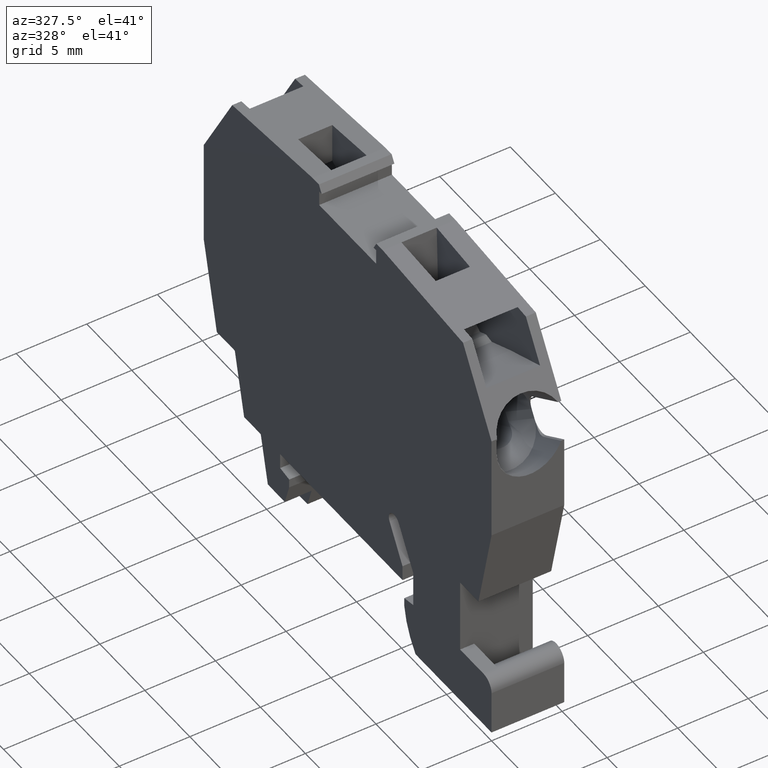
[diagram: clean part render]
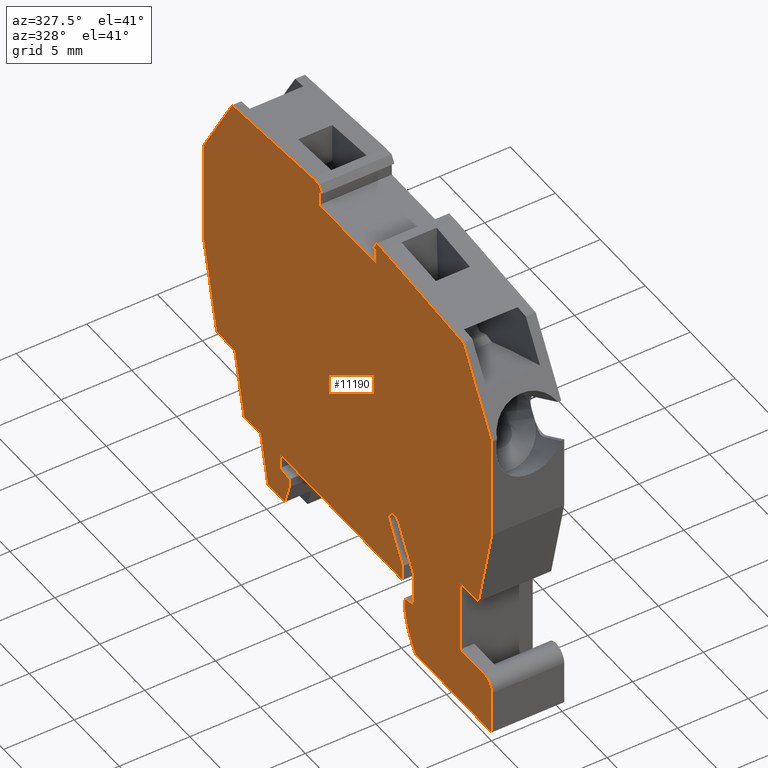
[diagram: same view with one face highlighted and labeled with its STEP entity id]
A machine part, auxiliary view. The second image highlights one B-rep face of the part: STEP entity #11190.
In plain terms, the highlighted planar face has unit normal (1, 0, 0).
Its self-contained STEP definition (entity closure, byte-faithful):
#3730=CARTESIAN_POINT('',(84.9052722821174,118.759658534384,10.930006));
#3740=CARTESIAN_POINT('',(84.9052722821174,118.759658534384,6.810002));
#3750=CARTESIAN_POINT('',(84.9052722821174,118.759658534384,
2.68999799999999));
#3760=CARTESIAN_POINT('',(84.9052722821174,118.759658534384,
-1.43000600000001));
#3770=CARTESIAN_POINT('',(84.3856570398464,118.759658534384,10.930006));
#3780=CARTESIAN_POINT('',(84.3856570398464,118.759658534384,
6.81000199999999));
#3790=CARTESIAN_POINT('',(84.3856570398464,118.759658534384,
2.68999799999999));
#3800=CARTESIAN_POINT('',(84.3856570398464,118.759658534384,
-1.43000600000001));
#3810=CARTESIAN_POINT('',(84.125849418711,119.209658534384,10.930006));
#3820=CARTESIAN_POINT('',(84.1258494187111,119.209658534384,6.810002));
#3830=CARTESIAN_POINT('',(84.1258494187111,119.209658534384,
2.68999799999999));
#3840=CARTESIAN_POINT('',(84.1258494187111,119.209658534384,
-1.43000600000001));
#3850=CARTESIAN_POINT('',(84.3856570398469,119.659658534384,10.930006));
#3860=CARTESIAN_POINT('',(84.3856570398469,119.659658534384,6.810002));
#3870=CARTESIAN_POINT('',(84.385657039847,119.659658534384,2.689998));
#3880=CARTESIAN_POINT('',(84.385657039847,119.659658534384,-1.430006));
#3890=(BOUNDED_SURFACE() B_SPLINE_SURFACE(3,3,((#3730,#3770,#3810,#3850)
,(#3740,#3780,#3820,#3860),(#3750,#3790,#3830,#3870),(#3760,#3800,#3840,
#3880)),.UNSPECIFIED.,.F.,.F.,.F.) B_SPLINE_SURFACE_WITH_KNOTS((4,4),(4,
4),(-11.030006,1.330006),(0.,2.0943951023941),.UNSPECIFIED.) 
GEOMETRIC_REPRESENTATION_ITEM() RATIONAL_B_SPLINE_SURFACE(((1.,
0.666666666666405,0.666666666666405,1.),(1.,0.666666666666405,
0.666666666666405,1.),(1.,0.666666666666405,0.666666666666405,1.),(1.,
0.666666666666405,0.666666666666405,1.))) REPRESENTATION_ITEM('') 
SURFACE());
#4980=CARTESIAN_POINT('',(84.9052722821174,119.959658534384,-1.430006));
#4990=CARTESIAN_POINT('',(84.9052722821173,119.959658534384,2.689998));
#5000=CARTESIAN_POINT('',(84.9052722821173,119.959658534384,6.810002));
#5010=CARTESIAN_POINT('',(84.9052722821173,119.959658534384,10.930006));
#5020=CARTESIAN_POINT('',(84.6856570398469,119.959658534384,-1.430006));
#5030=CARTESIAN_POINT('',(84.6856570398469,119.959658534384,2.689998));
#5040=CARTESIAN_POINT('',(84.6856570398469,119.959658534384,6.810002));
#5050=CARTESIAN_POINT('',(84.6856570398468,119.959658534384,10.930006));
#5060=CARTESIAN_POINT('',(84.4954646609824,119.849850913249,
-1.43000600000001));
#5070=CARTESIAN_POINT('',(84.4954646609824,119.849850913249,2.689998));
#5080=CARTESIAN_POINT('',(84.4954646609823,119.849850913249,6.810002));
#5090=CARTESIAN_POINT('',(84.4954646609823,119.849850913248,10.930006));
#5100=CARTESIAN_POINT('',(84.385657039847,119.659658534384,
-1.43000600000001));
#5110=CARTESIAN_POINT('',(84.385657039847,119.659658534384,
2.68999799999999));
#5120=CARTESIAN_POINT('',(84.3856570398469,119.659658534384,6.810002));
#5130=CARTESIAN_POINT('',(84.3856570398469,119.659658534384,10.930006));
#5140=(BOUNDED_SURFACE() B_SPLINE_SURFACE(3,3,((#4980,#5020,#5060,#5100)
,(#4990,#5030,#5070,#5110),(#5000,#5040,#5080,#5120),(#5010,#5050,#5090,
#5130)),.UNSPECIFIED.,.F.,.F.,.F.) B_SPLINE_SURFACE_WITH_KNOTS((4,4),(4,
4),(-1.33000600000001,11.030006),(0.,1.0471975511957),.UNSPECIFIED.) 
GEOMETRIC_REPRESENTATION_ITEM() RATIONAL_B_SPLINE_SURFACE(((1.,
0.91068360252311,0.91068360252311,1.),(1.,0.91068360252311,
0.91068360252311,1.),(1.,0.91068360252311,0.91068360252311,1.),(1.,
0.91068360252311,0.91068360252311,1.))) REPRESENTATION_ITEM('') SURFACE(
));
#6270=CARTESIAN_POINT('',(73.7989586126691,130.334733248301,9.9));
#6280=DIRECTION('',(2.75007415921002E-49,1.0263416486754E-48,-1.));
#6290=DIRECTION('',(-0.50000000000023,-0.866025403784306,
-1.02634164867533E-48));
#6300=AXIS2_PLACEMENT_3D('',#6270,#6280,#6290);
#6310=PLANE('',#6300);
#6320=CARTESIAN_POINT('',(94.0067872298852,117.723944849772,9.9));
#6330=DIRECTION('',(0.499999999999961,0.866025403784461,
1.02634164867532E-48));
#6340=VECTOR('',#6330,1.);
#6350=LINE('',#6320,#6340);
#6360=CARTESIAN_POINT('',(93.6243744555108,117.061586495092,9.9));
#6370=VERTEX_POINT('',#6360);
#6380=CARTESIAN_POINT('',(97.8515735103915,124.383310031853,9.9));
#6390=VERTEX_POINT('',#6380);
#6400=EDGE_CURVE('',#6370,#6390,#6350,.T.);
#6410=ORIENTED_EDGE('',*,*,#6400,.T.);
#6420=CARTESIAN_POINT('',(92.7381946940344,122.995782770102,9.9));
#6430=DIRECTION('',(4.82893121391161E-15,8.36395420874503E-15,-1.));
#6440=DIRECTION('',(-0.499999999999958,-0.866025403784463,
-9.65786242781878E-15));
#6450=AXIS2_PLACEMENT_3D('',#6420,#6430,#6440);
#6460=CIRCLE('',#6450,6.);
#6470=CARTESIAN_POINT('',(90.4900998394155,117.432863615141,9.9));
#6480=VERTEX_POINT('',#6470);
#6490=EDGE_CURVE('',#6370,#6480,#6460,.T.);
#6500=ORIENTED_EDGE('',*,*,#6490,.F.);
#6510=CARTESIAN_POINT('',(79.6226566744922,123.707184851812,9.9));
#6520=DIRECTION('',(0.866025403784463,-0.499999999999958,
1.77767588142985E-48));
#6530=VECTOR('',#6520,1.);
#6540=LINE('',#6510,#6530);
#6550=CARTESIAN_POINT('',(89.9499831610541,117.744700124787,9.9));
#6560=VERTEX_POINT('',#6550);
#6570=EDGE_CURVE('',#6560,#6480,#6540,.T.);
#6580=ORIENTED_EDGE('',*,*,#6570,.T.);
#6590=CARTESIAN_POINT('',(89.9424288587446,117.723944849772,9.9));
#6600=DIRECTION('',(-0.342020143325517,-0.939692620785963,
-7.02059035561818E-49));
#6610=VECTOR('',#6600,1.);
#6620=LINE('',#6590,#6610);
#6630=CARTESIAN_POINT('',(90.2972795163878,118.698889018925,9.9));
#6640=VERTEX_POINT('',#6630);
#6650=EDGE_CURVE('',#6640,#6560,#6620,.T.);
#6660=ORIENTED_EDGE('',*,*,#6650,.T.);
#6670=CARTESIAN_POINT('',(79.6226566744922,124.861885390191,9.9));
#6680=DIRECTION('',(0.866025403784463,-0.499999999999958,
1.77767588142985E-48));
#6690=VECTOR('',#6680,1.);
#6700=LINE('',#6670,#6690);
#6710=CARTESIAN_POINT('',(88.1135626589794,119.959658534384,9.9));
#6720=VERTEX_POINT('',#6710);
#6730=EDGE_CURVE('',#6720,#6640,#6700,.T.);
#6740=ORIENTED_EDGE('',*,*,#6730,.T.);
#6750=CARTESIAN_POINT('',(79.6226566744922,119.959658534383,9.9));
#6760=DIRECTION('',(1.,4.90718576884321E-14,2.05268329735081E-48));
#6770=VECTOR('',#6760,1.);
#6780=LINE('',#6750,#6770);
#6790=CARTESIAN_POINT('',(84.9052722821173,119.959658534384,9.9));
#6800=VERTEX_POINT('',#6790);
#6810=EDGE_CURVE('',#6800,#6720,#6780,.T.);
#6820=ORIENTED_EDGE('',*,*,#6810,.T.);
#6830=CARTESIAN_POINT('',(65.1312694919156,122.036639857056,9.9));
#6840=DIRECTION('',(2.75007415921001E-49,1.0263416486754E-48,-1.));
#6850=DIRECTION('',(-0.50000000000023,-0.866025403784306,
-1.02634164867533E-48));
#6860=AXIS2_PLACEMENT_3D('',#6830,#6840,#6850);
#6870=PLANE('',#6860);
#6880=CARTESIAN_POINT('',(84.9052722821173,119.959658534384,9.9));
#6890=CARTESIAN_POINT('',(84.8922553895517,119.959658534384,9.9));
#6900=CARTESIAN_POINT('',(84.879211767035,119.959234507938,9.9));
#6910=CARTESIAN_POINT('',(84.8661820005516,119.958383805177,9.9));
#6920=CARTESIAN_POINT('',(84.8531522794495,119.95753310538,9.9));
#6930=CARTESIAN_POINT('',(84.8401369356626,119.956255740973,9.9));
#6940=CARTESIAN_POINT('',(84.8271775356204,119.954554500557,9.9));
#6950=CARTESIAN_POINT('',(84.8142181337673,119.952853259903,9.9));
#6960=CARTESIAN_POINT('',(84.8013152005139,119.950728213042,9.9));
#6970=CARTESIAN_POINT('',(84.7885095327525,119.948187599393,9.9));
#6980=CARTESIAN_POINT('',(84.7757033120261,119.945646876037,9.9));
#6990=CARTESIAN_POINT('',(84.7629970334966,119.942691248885,9.9));
#7000=CARTESIAN_POINT('',(84.750422857509,119.939332283745,9.9));
#7010=CARTESIAN_POINT('',(84.7378409498754,119.935971253235,9.9));
#7020=CARTESIAN_POINT('',(84.7253301208178,119.932189927124,9.9));
#7030=CARTESIAN_POINT('',(84.7129299019039,119.927993302609,9.9));
#7040=CARTESIAN_POINT('',(84.7005297719434,119.923796708199,9.9));
#7050=CARTESIAN_POINT('',(84.6882407546436,119.919184936903,9.9));
#7060=CARTESIAN_POINT('',(84.6761033322517,119.914168761898,9.9));
#7070=CARTESIAN_POINT('',(84.6639659507758,119.909152603802,9.9));
#7080=CARTESIAN_POINT('',(84.6519806734497,119.903732229074,9.9));
#7090=CARTESIAN_POINT('',(84.6401870375704,119.897924094422,9.9));
#7100=CARTESIAN_POINT('',(84.6283933992491,119.892115958568,9.9));
#7110=CARTESIAN_POINT('',(84.6167918953126,119.885920307031,9.9));
#7120=CARTESIAN_POINT('',(84.6054194521357,119.87935871752,9.9));
#7130=CARTESIAN_POINT('',(84.5940469657505,119.872797103079,9.9));
#7140=CARTESIAN_POINT('',(84.5829039956317,119.865869841598,9.9));
#7150=CARTESIAN_POINT('',(84.5720234143097,119.858602611515,9.9));
#7160=CARTESIAN_POINT('',(84.5611426211523,119.851335239947,9.9));
#7170=CARTESIAN_POINT('',(84.5505251554321,119.843728623734,9.9));
#7180=CARTESIAN_POINT('',(84.5401970942795,119.835809883458,9.9));
#7190=CARTESIAN_POINT('',(84.5298646176953,119.827887757778,9.9));
#7200=CARTESIAN_POINT('',(84.5197583401296,119.819604531619,9.9));
#7210=CARTESIAN_POINT('',(84.5099128261391,119.810979817472,9.9));
#7220=CARTESIAN_POINT('',(84.5000673843084,119.802355166537,9.9));
#7230=CARTESIAN_POINT('',(84.490483123248,119.793389330617,9.9));
#7240=CARTESIAN_POINT('',(84.4811933338156,119.784107642767,9.9));
#7250=CARTESIAN_POINT('',(84.471903577023,119.774825987528,9.9));
#7260=CARTESIAN_POINT('',(84.462908690772,119.765228847087,9.9));
#7270=CARTESIAN_POINT('',(84.4542389629133,119.755346473255,9.9));
#7280=CARTESIAN_POINT('',(84.445569234456,119.74546409874,9.9));
#7290=CARTESIAN_POINT('',(84.4372250268748,119.735296904691,9.9));
#7300=CARTESIAN_POINT('',(84.4292322895197,119.724878913672,9.9));
#7310=CARTESIAN_POINT('',(84.4212395229412,119.714460884563,9.9));
#7320=CARTESIAN_POINT('',(84.4135985371096,119.70379250173,9.9));
#7330=CARTESIAN_POINT('',(84.4063299896477,119.692910074193,9.9));
#7340=CARTESIAN_POINT('',(84.3990613877759,119.682027565194,9.9));
#7350=CARTESIAN_POINT('',(84.3921654687247,119.670931463878,9.9));
#7360=CARTESIAN_POINT('',(84.3856570398469,119.659658534384,9.9));
#7370=B_SPLINE_CURVE_WITH_KNOTS('',3,(#6880,#6890,#6900,#6910,#6920,
#6930,#6940,#6950,#6960,#6970,#6980,#6990,#7000,#7010,#7020,#7030,#7040,
#7050,#7060,#7070,#7080,#7090,#7100,#7110,#7120,#7130,#7140,#7150,#7160,
#7170,#7180,#7190,#7200,#7210,#7220,#7230,#7240,#7250,#7260,#7270,#7280,
#7290,#7300,#7310,#7320,#7330,#7340,#7350,#7360),.UNSPECIFIED.,.F.,.F.,(
4,3,3,3,3,3,3,3,3,3,3,3,3,3,3,3,4),(0.,0.0391179881814192,
0.0783169462175899,0.117512585565329,0.156622084769641,0.195799111763416
,0.235142074090235,0.27456831765098,0.313989341949201,0.353317003248559,
0.392470125734913,0.431639167849597,0.470977155326416,0.510401793913125,
0.54982469268618,0.589157579635011,0.628318530717425),.UNSPECIFIED.);
#7380=SURFACE_CURVE('',#7370,(#6870,#5140),.CURVE_3D.);
#7390=CARTESIAN_POINT('',(84.3856570398469,119.659658534384,9.9));
#7400=VERTEX_POINT('',#7390);
#7410=EDGE_CURVE('',#6800,#7400,#7380,.T.);
#7420=ORIENTED_EDGE('',*,*,#7410,.F.);
#7430=CARTESIAN_POINT('',(84.3856570398469,119.659658534384,9.9));
#7440=CARTESIAN_POINT('',(84.3791524664466,119.648392282773,9.9));
#7450=CARTESIAN_POINT('',(84.3730086181134,119.636903756255,9.9));
#7460=CARTESIAN_POINT('',(84.3672457372375,119.625228557174,9.9));
#7470=CARTESIAN_POINT('',(84.3614815168322,119.613550644298,9.9));
#7480=CARTESIAN_POINT('',(84.3561037457526,119.601698565305,9.9));
#7490=CARTESIAN_POINT('',(84.3511132970889,119.58967553226,9.9));
#7500=CARTESIAN_POINT('',(84.3461197065178,119.577644929705,9.9));
#7510=CARTESIAN_POINT('',(84.3415035751625,119.565416174713,9.9));
#7520=CARTESIAN_POINT('',(84.3372848182968,119.553024097366,9.9));
#7530=CARTESIAN_POINT('',(84.3330660894045,119.540632102188,9.9));
#7540=CARTESIAN_POINT('',(84.3292449421917,119.528077261568,9.9));
#7550=CARTESIAN_POINT('',(84.325837157934,119.515398499972,9.9));
#7560=CARTESIAN_POINT('',(84.3224293834914,119.502719774893,9.9));
#7570=CARTESIAN_POINT('',(84.3194351306438,119.489917648079,9.9));
#7580=CARTESIAN_POINT('',(84.3168650257207,119.477033577052,9.9));
#7590=CARTESIAN_POINT('',(84.3142949190566,119.464149497298,9.9));
#7600=CARTESIAN_POINT('',(84.3121490633138,119.451184011792,9.9));
#7610=CARTESIAN_POINT('',(84.3104324154984,119.438179443002,9.9));
#7620=CARTESIAN_POINT('',(84.3087157603336,119.425174818536,9.9));
#7630=CARTESIAN_POINT('',(84.3074283560309,119.412131645361,9.9));
#7640=CARTESIAN_POINT('',(84.3065694726115,119.399091336599,9.9));
#7650=CARTESIAN_POINT('',(84.3057103881583,119.386047975569,9.9));
#7660=CARTESIAN_POINT('',(84.3052800457298,119.373020821215,9.9));
#7670=CARTESIAN_POINT('',(84.3052723861203,119.360011809878,9.9));
#7680=CARTESIAN_POINT('',(84.3052647185534,119.346989283685,9.9));
#7690=CARTESIAN_POINT('',(84.3056813975167,119.333927736017,9.9));
#7700=CARTESIAN_POINT('',(84.3065275911639,119.320866846419,9.9));
#7710=CARTESIAN_POINT('',(84.3073737790585,119.307806045614,9.9));
#7720=CARTESIAN_POINT('',(84.3086494916608,119.29474642137,9.9));
#7730=CARTESIAN_POINT('',(84.3103545308169,119.281729918409,9.9));
#7740=CARTESIAN_POINT('',(84.3120595647991,119.268713454946,9.9));
#7750=CARTESIAN_POINT('',(84.3141938742045,119.25574065267,9.9));
#7760=CARTESIAN_POINT('',(84.3167515318803,119.242853883189,9.9));
#7770=CARTESIAN_POINT('',(84.3193091909035,119.22996710692,9.9));
#7780=CARTESIAN_POINT('',(84.3222900881434,119.217166900627,9.9));
#7790=CARTESIAN_POINT('',(84.3256827144375,119.204494321252,9.9));
#7800=CARTESIAN_POINT('',(84.3290753547227,119.191821689615,9.9));
#7810=CARTESIAN_POINT('',(84.3328795598113,119.179277196334,9.9));
#7820=CARTESIAN_POINT('',(84.3370788845011,119.166898935646,9.9));
#7830=CARTESIAN_POINT('',(84.3412787762865,119.154519003343,9.9));
#7840=CARTESIAN_POINT('',(84.3458709373764,119.142312488445,9.9));
#7850=CARTESIAN_POINT('',(84.3508429770934,119.130293877711,9.9));
#7860=CARTESIAN_POINT('',(84.3558198931878,119.118263479604,9.9));
#7870=CARTESIAN_POINT('',(84.3612037417691,119.10635897569,9.9));
#7880=CARTESIAN_POINT('',(84.3669842494651,119.094618926205,9.9));
#7890=CARTESIAN_POINT('',(84.3727647168925,119.082878958505,9.9));
#7900=CARTESIAN_POINT('',(84.3789416558523,119.071303927177,9.9));
#7910=CARTESIAN_POINT('',(84.385498962412,119.059932499274,9.9));
#7920=CARTESIAN_POINT('',(84.3920562480622,119.048561107632,9.9));
#7930=CARTESIAN_POINT('',(84.3989936485972,119.03739379853,9.9));
#7940=CARTESIAN_POINT('',(84.4062895841859,119.026467497342,9.9));
#7950=CARTESIAN_POINT('',(84.4135855225198,119.015541192042,9.9));
#7960=CARTESIAN_POINT('',(84.4212396893526,119.004856349411,9.9));
#7970=CARTESIAN_POINT('',(84.4292258177046,118.994446590822,9.9));
#7980=CARTESIAN_POINT('',(84.4372119777365,118.984036790939,9.9));
#7990=CARTESIAN_POINT('',(84.4455297520304,118.973902486016,9.9));
#8000=CARTESIAN_POINT('',(84.4541493993924,118.964072709711,9.9));
#8010=CARTESIAN_POINT('',(84.4627696008118,118.954242301563,9.9));
#8020=CARTESIAN_POINT('',(84.4716890756778,118.94471908158,9.9));
#8030=CARTESIAN_POINT('',(84.4808827235826,118.935519992623,9.9));
#8040=CARTESIAN_POINT('',(84.4900836175769,118.926313653289,9.9));
#8050=CARTESIAN_POINT('',(84.4996124128275,118.917378925541,9.9));
#8060=CARTESIAN_POINT('',(84.5094450183332,118.908747481907,9.9));
#8070=CARTESIAN_POINT('',(84.5192775536821,118.90011609986,9.9));
#8080=CARTESIAN_POINT('',(84.5294135433908,118.891788375132,9.9));
#8090=CARTESIAN_POINT('',(84.5398234376941,118.88379390856,9.9));
#8100=CARTESIAN_POINT('',(84.5502332971908,118.875799468719,9.9));
#8110=CARTESIAN_POINT('',(84.5609166455768,118.868138633272,9.9));
#8120=CARTESIAN_POINT('',(84.5718395010633,118.860837343455,9.9));
#8130=CARTESIAN_POINT('',(84.5827623590156,118.853536051989,9.9));
#8140=CARTESIAN_POINT('',(84.5939242672656,118.846594609761,9.9));
#8150=CARTESIAN_POINT('',(84.6052881298481,118.840034142743,9.9));
#8160=CARTESIAN_POINT('',(84.6166520357312,118.833473650727,9.9));
#8170=CARTESIAN_POINT('',(84.628217417607,118.827294381903,9.9));
#8180=CARTESIAN_POINT('',(84.6399456670681,118.821511911848,9.9));
#8190=CARTESIAN_POINT('',(84.6516741717263,118.815729315971,9.9));
#8200=CARTESIAN_POINT('',(84.6635643302958,118.810344020553,9.9));
#8210=CARTESIAN_POINT('',(84.6755800325725,118.805364866281,9.9));
#8220=CARTESIAN_POINT('',(84.687601276166,118.800383415757,9.9));
#8230=CARTESIAN_POINT('',(84.699821788966,118.795778037722,9.9));
#8240=CARTESIAN_POINT('',(84.7122073481452,118.791568813235,9.9));
#8250=CARTESIAN_POINT('',(84.7245928168495,118.787359619495,9.9));
#8260=CARTESIAN_POINT('',(84.73714286215,118.783546788325,9.9));
#8270=CARTESIAN_POINT('',(84.7498189586374,118.780146442833,9.9));
#8280=CARTESIAN_POINT('',(84.7624950107736,118.776746109239,9.9));
#8290=CARTESIAN_POINT('',(84.7752965985121,118.773758422824,9.9));
#8300=CARTESIAN_POINT('',(84.7881824485436,118.771194456573,9.9));
#8310=CARTESIAN_POINT('',(84.8010682995447,118.768630490129,9.9));
#8320=CARTESIAN_POINT('',(84.8140378747162,118.766490350422,9.9));
#8330=CARTESIAN_POINT('',(84.8270488102091,118.764779480723,9.9));
#8340=CARTESIAN_POINT('',(84.8400597932463,118.763068604773,9.9));
#8350=CARTESIAN_POINT('',(84.8531115990598,118.761787045916,9.9));
#8360=CARTESIAN_POINT('',(84.8661625300093,118.760934535118,9.9));
#8370=CARTESIAN_POINT('',(84.8792135585181,118.760082017947,9.9));
#8380=CARTESIAN_POINT('',(84.8922631997174,118.759658534384,9.9));
#8390=CARTESIAN_POINT('',(84.9052722821174,118.759658534384,9.9));
#8400=B_SPLINE_CURVE_WITH_KNOTS('',3,(#7430,#7440,#7450,#7460,#7470,
#7480,#7490,#7500,#7510,#7520,#7530,#7540,#7550,#7560,#7570,#7580,#7590,
#7600,#7610,#7620,#7630,#7640,#7650,#7660,#7670,#7680,#7690,#7700,#7710,
#7720,#7730,#7740,#7750,#7760,#7770,#7780,#7790,#7800,#7810,#7820,#7830,
#7840,#7850,#7860,#7870,#7880,#7890,#7900,#7910,#7920,#7930,#7940,#7950,
#7960,#7970,#7980,#7990,#8000,#8010,#8020,#8030,#8040,#8050,#8060,#8070,
#8080,#8090,#8100,#8110,#8120,#8130,#8140,#8150,#8160,#8170,#8180,#8190,
#8200,#8210,#8220,#8230,#8240,#8250,#8260,#8270,#8280,#8290,#8300,#8310,
#8320,#8330,#8340,#8350,#8360,#8370,#8380,#8390),.UNSPECIFIED.,.F.,.F.,(
4,3,3,3,3,3,3,3,3,3,3,3,3,3,3,3,3,3,3,3,3,3,3,3,3,3,3,3,3,3,3,3,4),(0.,
0.03905044959491,0.0780992822992287,0.117279633515831,0.156615223227715,
0.196022387826658,0.235412480429098,0.274698020850868,0.313805989847709,
0.352978029074242,0.392308658775449,0.431714569761626,0.471107200362552,
0.510398896086448,0.549513116704426,0.588676713607366,0.628002231434766,
0.667406727517966,0.706801736449671,0.746099440673842,0.785220667735143,
0.824375693193494,0.863695947936633,0.903098867997635,0.942496095303167,
0.981799660436926,1.02092864773696,1.06007497386912,1.09938981498791,
1.13879099811314,1.17819028354703,1.21749956124592,1.25663706144443),
.UNSPECIFIED.);
#8410=SURFACE_CURVE('',#8400,(#6870,#3890),.CURVE_3D.);
#8420=CARTESIAN_POINT('',(84.9052722821174,118.759658534384,9.9));
#8430=VERTEX_POINT('',#8420);
#8440=EDGE_CURVE('',#7400,#8430,#8410,.T.);
#8450=ORIENTED_EDGE('',*,*,#8440,.F.);
#8460=CARTESIAN_POINT('',(79.6226566744922,118.759658534383,9.9));
#8470=DIRECTION('',(-1.,-4.94604357470507E-14,-2.05268329735081E-48));
#8480=VECTOR('',#8470,1.);
#8490=LINE('',#8460,#8480);
#8500=CARTESIAN_POINT('',(87.7920236280621,118.759658534384,9.9));
#8510=VERTEX_POINT('',#8500);
#8520=EDGE_CURVE('',#8510,#8430,#8490,.T.);
#8530=ORIENTED_EDGE('',*,*,#8520,.T.);
#8540=CARTESIAN_POINT('',(79.6226566744922,123.476244744136,9.9));
#8550=DIRECTION('',(-0.866025403784463,0.499999999999958,
-1.77767588142985E-48));
#8560=VECTOR('',#8550,1.);
#8570=LINE('',#8540,#8560);
#8580=CARTESIAN_POINT('',(88.744651572225,118.209658534384,9.9));
#8590=VERTEX_POINT('',#8580);
#8600=EDGE_CURVE('',#8590,#8510,#8570,.T.);
#8610=ORIENTED_EDGE('',*,*,#8600,.T.);
#8620=CARTESIAN_POINT('',(88.4642246456651,117.723944849772,9.9));
#8630=DIRECTION('',(0.499999999999958,0.866025403784463,
1.02634164867532E-48));
#8640=VECTOR('',#8630,1.);
#8650=LINE('',#8620,#8640);
#8660=CARTESIAN_POINT('',(81.9446515722256,106.431713042915,9.9));
#8670=VERTEX_POINT('',#8660);
#8680=EDGE_CURVE('',#8670,#8590,#8650,.T.);
#8690=ORIENTED_EDGE('',*,*,#8680,.T.);
#8700=CARTESIAN_POINT('',(82.8972795163885,105.881713042915,
9.90000000000007));
#8710=DIRECTION('',(-0.866025403784463,0.499999999999958,
-3.0379265288839E-27));
#8720=VECTOR('',#8710,1.);
#8730=LINE('',#8700,#8720);
#8740=CARTESIAN_POINT('',(82.8972795163885,105.881713042915,9.9));
#8750=VERTEX_POINT('',#8740);
#8760=EDGE_CURVE('',#8750,#8670,#8730,.T.);
#8770=ORIENTED_EDGE('',*,*,#8760,.T.);
#8780=CARTESIAN_POINT('',(83.5499831610546,106.659574956346,
9.90000000000008));
#8790=DIRECTION('',(-0.642787609686519,-0.766044443118995,
-9.51113779644172E-15));
#8800=VECTOR('',#8790,1.);
#8810=LINE('',#8780,#8800);
#8820=CARTESIAN_POINT('',(83.5499831610546,106.659574956346,9.9));
#8830=VERTEX_POINT('',#8820);
#8840=EDGE_CURVE('',#8830,#8750,#8810,.T.);
#8850=ORIENTED_EDGE('',*,*,#8840,.T.);
#8860=CARTESIAN_POINT('',(84.0900998394161,106.3477384467,
9.90000000000008));
#8870=DIRECTION('',(-0.866025403784458,0.499999999999968,
-2.92789559285896E-27));
#8880=VECTOR('',#8870,1.);
#8890=LINE('',#8860,#8880);
#8900=CARTESIAN_POINT('',(84.090099839416,106.3477384467,9.9));
#8910=VERTEX_POINT('',#8900);
#8920=EDGE_CURVE('',#8910,#8830,#8890,.T.);
#8930=ORIENTED_EDGE('',*,*,#8920,.T.);
#8940=CARTESIAN_POINT('',(73.8469175853231,117.723944849772,9.9));
#8950=DIRECTION('',(-0.669130606358861,0.743144825477392,
-1.37351321941905E-48));
#8960=VECTOR('',#8950,1.);
#8970=LINE('',#8940,#8960);
#8980=CARTESIAN_POINT('',(85.1454481729173,105.175655380009,
9.90000000000633));
#8990=VERTEX_POINT('',#8980);
#9000=EDGE_CURVE('',#8990,#8910,#8970,.T.);
#9010=ORIENTED_EDGE('',*,*,#9000,.T.);
#9020=CARTESIAN_POINT('',(92.3902064761551,117.723944849772,9.9));
#9030=DIRECTION('',(-0.500000000000047,-0.866025403784412,
-1.0263416486755E-48));
#9040=VECTOR('',#9030,1.);
#9050=LINE('',#9020,#9040);
#9060=CARTESIAN_POINT('',(84.20165417794,103.54095622883,9.9));
#9070=VERTEX_POINT('',#9060);
#9080=EDGE_CURVE('',#8990,#9070,#9050,.T.);
#9090=ORIENTED_EDGE('',*,*,#9080,.F.);
#9100=CARTESIAN_POINT('',(79.6226566744921,104.940896255957,9.9));
#9110=DIRECTION('',(-0.956304755963028,0.292371704722762,
-1.96299079974244E-48));
#9120=VECTOR('',#9110,1.);
#9130=LINE('',#9100,#9120);
#9140=CARTESIAN_POINT('',(80.8646918801595,104.561167986132,9.9));
#9150=VERTEX_POINT('',#9140);
#9160=EDGE_CURVE('',#9070,#9150,#9130,.T.);
#9170=ORIENTED_EDGE('',*,*,#9160,.F.);
#9180=CARTESIAN_POINT('',(88.4642246456657,117.723944849772,9.9));
#9190=DIRECTION('',(-0.500000000000053,-0.866025403784408,
-1.02634164867551E-48));
#9200=VECTOR('',#9190,1.);
#9210=LINE('',#9180,#9200);
#9220=CARTESIAN_POINT('',(79.9410181831449,102.961318213287,
9.90000000000768));
#9230=VERTEX_POINT('',#9220);
#9240=EDGE_CURVE('',#9150,#9230,#9210,.T.);
#9250=ORIENTED_EDGE('',*,*,#9240,.F.);
#9260=CARTESIAN_POINT('',(79.6226566744922,103.058651094278,9.9));
#9270=DIRECTION('',(0.956304755963056,-0.292371704722669,
1.9629907997425E-48));
#9280=VECTOR('',#9270,1.);
#9290=LINE('',#9260,#9280);
#9300=CARTESIAN_POINT('',(75.5244504360704,104.311598480309,9.9));
#9310=VERTEX_POINT('',#9300);
#9320=EDGE_CURVE('',#9310,#9230,#9290,.T.);
#9330=ORIENTED_EDGE('',*,*,#9320,.T.);
#9340=CARTESIAN_POINT('',(83.2680722229596,117.723944849772,9.9));
#9350=DIRECTION('',(-0.500000000000741,-0.866025403784011,
-1.02634164867692E-48));
#9360=VECTOR('',#9350,1.);
#9370=LINE('',#9340,#9360);
#9380=CARTESIAN_POINT('',(74.524772057222,102.580104736919,9.9));
#9390=VERTEX_POINT('',#9380);
#9400=EDGE_CURVE('',#9310,#9390,#9370,.T.);
#9410=ORIENTED_EDGE('',*,*,#9400,.F.);
#9420=CARTESIAN_POINT('',(79.4494515937163,101.074479106254,9.9));
#9430=DIRECTION('',(0.956304755962662,-0.29237170472396,
5.98579406710722E-19));
#9440=VECTOR('',#9430,1.);
#9450=LINE('',#9420,#9440);
#9460=CARTESIAN_POINT('',(68.3415772113182,104.470497110757,9.9));
#9470=VERTEX_POINT('',#9460);
#9480=EDGE_CURVE('',#9470,#9390,#9450,.T.);
#9490=ORIENTED_EDGE('',*,*,#9480,.T.);
#9500=CARTESIAN_POINT('',(79.6226566744922,97.957362845935,9.9));
#9510=DIRECTION('',(-0.86602540378414,0.500000000000517,
-1.77767588142919E-48));
#9520=VECTOR('',#9510,1.);
#9530=LINE('',#9500,#9520);
#9540=CARTESIAN_POINT('',(61.9035663599316,108.187484408856,9.9));
#9550=VERTEX_POINT('',#9540);
#9560=EDGE_CURVE('',#9470,#9550,#9530,.T.);
#9570=ORIENTED_EDGE('',*,*,#9560,.F.);
#9580=CARTESIAN_POINT('',(56.3976883572616,117.723944849772,9.9));
#9590=DIRECTION('',(-0.499999999999394,0.866025403784789,
-1.02634164867416E-48));
#9600=VECTOR('',#9590,1.);
#9610=LINE('',#9580,#9600);
#9620=CARTESIAN_POINT('',(58.7371231859943,113.671924865404,9.9));
#9630=VERTEX_POINT('',#9620);
#9640=EDGE_CURVE('',#9550,#9630,#9610,.T.);
#9650=ORIENTED_EDGE('',*,*,#9640,.F.);
#9660=CARTESIAN_POINT('',(60.6266111357071,117.723944849772,9.9));
#9670=DIRECTION('',(0.422618261741619,0.906307787036221,
8.67501447032452E-49));
#9680=VECTOR('',#9670,1.);
#9690=LINE('',#9660,#9680);
#9700=CARTESIAN_POINT('',(62.5270291795025,121.799404496541,9.9));
#9710=VERTEX_POINT('',#9700);
#9720=EDGE_CURVE('',#9630,#9710,#9690,.T.);
#9730=ORIENTED_EDGE('',*,*,#9720,.F.);
#9740=CARTESIAN_POINT('',(60.1740614553628,117.723944849772,9.9));
#9750=DIRECTION('',(-0.500000000000883,-0.866025403783929,
-1.02634164867721E-48));
#9760=VECTOR('',#9750,1.);
#9770=LINE('',#9740,#9760);
#9780=CARTESIAN_POINT('',(62.8789351687343,122.408923549377,9.9));
#9790=VERTEX_POINT('',#9780);
#9800=EDGE_CURVE('',#9790,#9710,#9770,.T.);
#9810=ORIENTED_EDGE('',*,*,#9800,.T.);
#9820=CARTESIAN_POINT('',(79.6226566744922,122.408923549246,9.9));
#9830=DIRECTION('',(-1.,7.84955433985601E-12,-2.05268329735081E-48));
#9840=VECTOR('',#9830,1.);
#9850=LINE('',#9820,#9840);
#9860=CARTESIAN_POINT('',(63.4909264540766,122.408923549372,9.9));
#9870=VERTEX_POINT('',#9860);
#9880=EDGE_CURVE('',#9870,#9790,#9850,.T.);
#9890=ORIENTED_EDGE('',*,*,#9880,.T.);
#9900=CARTESIAN_POINT('',(60.7860527407061,117.723944849772,9.9));
#9910=DIRECTION('',(0.500000000001153,0.866025403783773,
1.02634164867777E-48));
#9920=VECTOR('',#9910,1.);
#9930=LINE('',#9900,#9920);
#9940=CARTESIAN_POINT('',(63.35477264351,122.173098231828,9.9));
#9950=VERTEX_POINT('',#9940);
#9960=EDGE_CURVE('',#9950,#9870,#9930,.T.);
#9970=ORIENTED_EDGE('',*,*,#9960,.T.);
#9980=CARTESIAN_POINT('',(79.6226566744922,112.780831007376,9.9));
#9990=DIRECTION('',(-0.86602540378402,0.500000000000726,
-1.77767588142894E-48));
#10000=VECTOR('',#9990,1.);
#10010=LINE('',#9980,#10000);
#10020=CARTESIAN_POINT('',(64.2814198255589,121.638098231827,9.9));
#10030=VERTEX_POINT('',#10020);
#10040=EDGE_CURVE('',#10030,#9950,#10010,.T.);
#10050=ORIENTED_EDGE('',*,*,#10040,.T.);
#10060=CARTESIAN_POINT('',(62.021582316777,117.723944849772,9.9));
#10070=DIRECTION('',(-0.500000000000464,-0.866025403784171,
-1.02634164867636E-48));
#10080=VECTOR('',#10070,1.);
#10090=LINE('',#10060,#10080);
#10100=CARTESIAN_POINT('',(67.443919825564,127.115708910765,9.9));
#10110=VERTEX_POINT('',#10100);
#10120=EDGE_CURVE('',#10110,#10030,#10090,.T.);
#10130=ORIENTED_EDGE('',*,*,#10120,.T.);
#10140=CARTESIAN_POINT('',(79.6226566744922,120.084311912641,9.9));
#10150=DIRECTION('',(0.866025403784261,-0.500000000000308,
1.77767588142944E-48));
#10160=VECTOR('',#10150,1.);
#10170=LINE('',#10140,#10160);
#10180=CARTESIAN_POINT('',(66.5172726435152,127.650708910766,9.9));
#10190=VERTEX_POINT('',#10180);
#10200=EDGE_CURVE('',#10190,#10110,#10170,.T.);
#10210=ORIENTED_EDGE('',*,*,#10200,.T.);
#10220=CARTESIAN_POINT('',(60.7860527407202,117.723944849772,9.9));
#10230=DIRECTION('',(0.499999999999881,0.866025403784508,
1.02634164867516E-48));
#10240=VECTOR('',#10230,1.);
#10250=LINE('',#10220,#10240);
#10260=CARTESIAN_POINT('',(66.381118832949,127.414883593221,9.9));
#10270=VERTEX_POINT('',#10260);
#10280=EDGE_CURVE('',#10270,#10190,#10250,.T.);
#10290=ORIENTED_EDGE('',*,*,#10280,.T.);
#10300=CARTESIAN_POINT('',(71.9761849252655,117.723944849772,9.9));
#10310=DIRECTION('',(0.500000000005764,-0.866025403781111,
1.02634164868723E-48));
#10320=VECTOR('',#10310,1.);
#10330=LINE('',#10300,#10320);
#10340=CARTESIAN_POINT('',(66.0751231902743,127.94488359322,9.9));
#10350=VERTEX_POINT('',#10340);
#10360=EDGE_CURVE('',#10350,#10270,#10330,.T.);
#10370=ORIENTED_EDGE('',*,*,#10360,.T.);
#10380=CARTESIAN_POINT('',(60.1740614553714,117.723944849772,9.9));
#10390=DIRECTION('',(-0.500000000000151,-0.866025403784352,
-1.02634164867571E-48));
#10400=VECTOR('',#10390,1.);
#10410=LINE('',#10380,#10400);
#10420=CARTESIAN_POINT('',(66.4270291795048,128.554402646055,9.9));
#10430=VERTEX_POINT('',#10420);
#10440=EDGE_CURVE('',#10430,#10350,#10410,.T.);
#10450=ORIENTED_EDGE('',*,*,#10440,.T.);
#10460=CARTESIAN_POINT('',(58.8434609882825,117.723944849772,9.9));
#10470=DIRECTION('',(-0.573576436351189,-0.819152044288892,
-1.17737077065208E-48));
#10480=VECTOR('',#10470,1.);
#10490=LINE('',#10460,#10480);
#10500=CARTESIAN_POINT('',(71.5706800120703,135.900297329958,9.9));
#10510=VERTEX_POINT('',#10500);
#10520=EDGE_CURVE('',#10510,#10430,#10490,.T.);
#10530=ORIENTED_EDGE('',*,*,#10520,.T.);
#10540=CARTESIAN_POINT('',(79.6226566744922,135.900297329959,9.9));
#10550=DIRECTION('',(-1.,-1.68365321684405E-13,-2.05268329735081E-48));
#10560=VECTOR('',#10550,1.);
#10570=LINE('',#10540,#10560);
#10580=CARTESIAN_POINT('',(77.9035663599303,135.900297329959,9.9));
#10590=VERTEX_POINT('',#10580);
#10600=EDGE_CURVE('',#10590,#10510,#10570,.T.);
#10610=ORIENTED_EDGE('',*,*,#10600,.T.);
#10620=CARTESIAN_POINT('',(79.6226566744922,134.907780074084,9.9));
#10630=DIRECTION('',(-0.86602540378414,0.500000000000517,
-1.77767588142919E-48));
#10640=VECTOR('',#10630,1.);
#10650=LINE('',#10620,#10640);
#10660=CARTESIAN_POINT('',(84.3415772113346,132.18331003185,9.9));
#10670=VERTEX_POINT('',#10660);
#10680=EDGE_CURVE('',#10670,#10590,#10650,.T.);
#10690=ORIENTED_EDGE('',*,*,#10680,.T.);
#10700=CARTESIAN_POINT('',(92.8365522661335,124.261617636888,9.9));
#10710=DIRECTION('',(0.731353701619229,-0.681998360062436,
-1.12240266701089E-18));
#10720=VECTOR('',#10710,1.);
#10730=LINE('',#10700,#10720);
#10740=CARTESIAN_POINT('',(89.0703024531515,127.773702405656,9.9));
#10750=VERTEX_POINT('',#10740);
#10760=EDGE_CURVE('',#10670,#10750,#10730,.T.);
#10770=ORIENTED_EDGE('',*,*,#10760,.F.);
#10780=CARTESIAN_POINT('',(83.3258072498702,117.823944849757,9.9));
#10790=DIRECTION('',(-0.500000000000741,-0.866025403784011,
-3.82523673593441E-18));
#10800=VECTOR('',#10790,1.);
#10810=LINE('',#10780,#10800);
#10820=CARTESIAN_POINT('',(88.0475372552029,126.002221118599,9.9));
#10830=VERTEX_POINT('',#10820);
#10840=EDGE_CURVE('',#10750,#10830,#10810,.T.);
#10850=ORIENTED_EDGE('',*,*,#10840,.F.);
#10860=CARTESIAN_POINT('',(79.6226566744922,130.866328189758,9.9));
#10870=DIRECTION('',(0.866025403784654,-0.499999999999627,
1.77767588143025E-48));
#10880=VECTOR('',#10870,1.);
#10890=LINE('',#10860,#10880);
#10900=CARTESIAN_POINT('',(92.6374718952526,123.352221118607,9.9));
#10910=VERTEX_POINT('',#10900);
#10920=EDGE_CURVE('',#10830,#10910,#10890,.T.);
#10930=ORIENTED_EDGE('',*,*,#10920,.F.);
#10940=CARTESIAN_POINT('',(89.3879850763651,117.723944849772,9.9));
#10950=DIRECTION('',(0.50000000000023,0.866025403784306,
1.02634164867587E-48));
#10960=VECTOR('',#10950,1.);
#10970=LINE('',#10940,#10960);
#10980=CARTESIAN_POINT('',(93.9374718952538,125.603887168447,9.9));
#10990=VERTEX_POINT('',#10980);
#11000=EDGE_CURVE('',#10910,#10990,#10970,.T.);
#11010=ORIENTED_EDGE('',*,*,#11000,.F.);
#11020=CARTESIAN_POINT('',(94.7168947586598,125.153887168447,9.9));
#11030=DIRECTION('',(4.82893121391161E-15,8.36395420874503E-15,-1.));
#11040=DIRECTION('',(-0.499999999999958,-0.866025403784463,
-9.65786242781877E-15));
#11050=AXIS2_PLACEMENT_3D('',#11020,#11030,#11040);
#11060=CIRCLE('',#11050,0.900000000000114);
#11070=CARTESIAN_POINT('',(95.1668947586597,125.933310031853,9.9));
#11080=VERTEX_POINT('',#11070);
#11090=EDGE_CURVE('',#10990,#11080,#11060,.T.);
#11100=ORIENTED_EDGE('',*,*,#11090,.F.);
#11110=CARTESIAN_POINT('',(79.6226566744922,134.907780074093,9.9));
#11120=DIRECTION('',(-0.866025403784463,0.499999999999958,
-1.77767588142985E-48));
#11130=VECTOR('',#11120,1.);
#11140=LINE('',#11110,#11130);
#11150=EDGE_CURVE('',#6390,#11080,#11140,.T.);
#11160=ORIENTED_EDGE('',*,*,#11150,.T.);
#11170=EDGE_LOOP('',(#11160,#11100,#11010,#10930,#10850,#10770,#10690,
#10610,#10530,#10450,#10370,#10290,#10210,#10130,#10050,#9970,#9890,
#9810,#9730,#9650,#9570,#9490,#9410,#9330,#9250,#9170,#9090,#9010,#8930,
#8850,#8770,#8690,#8610,#8530,#8450,#7420,#6820,#6740,#6660,#6580,#6500,
#6410));
#11180=FACE_OUTER_BOUND('',#11170,.T.);
#11190=ADVANCED_FACE('',(#11180),#6310,.F.);